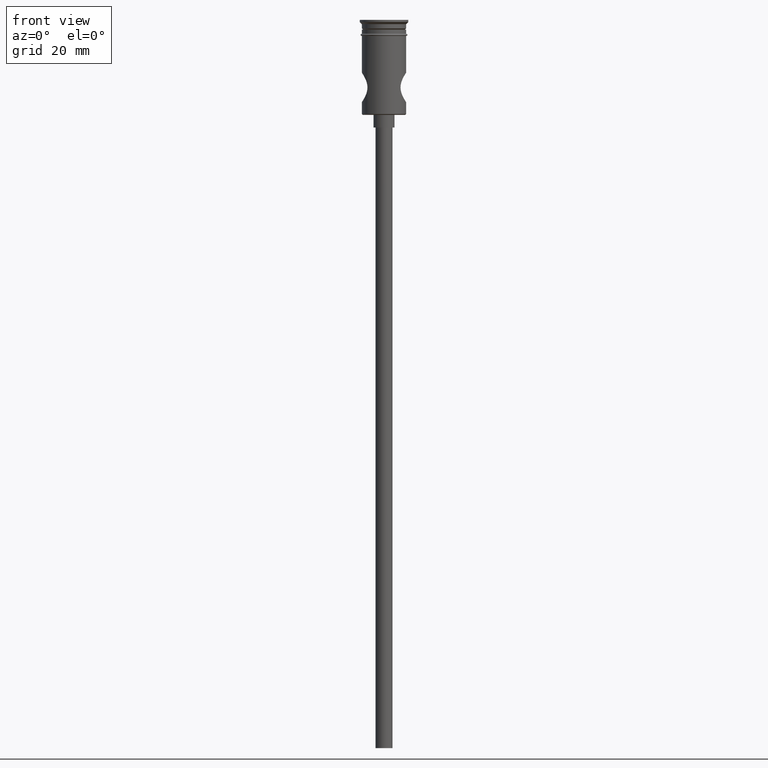
[diagram: clean part render]
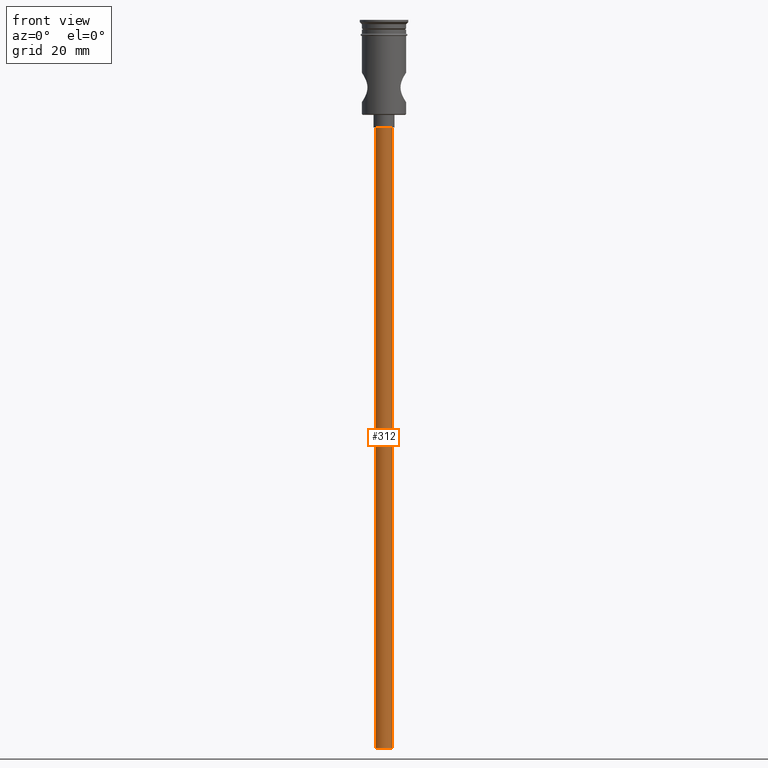
[diagram: same view with one face highlighted and labeled with its STEP entity id]
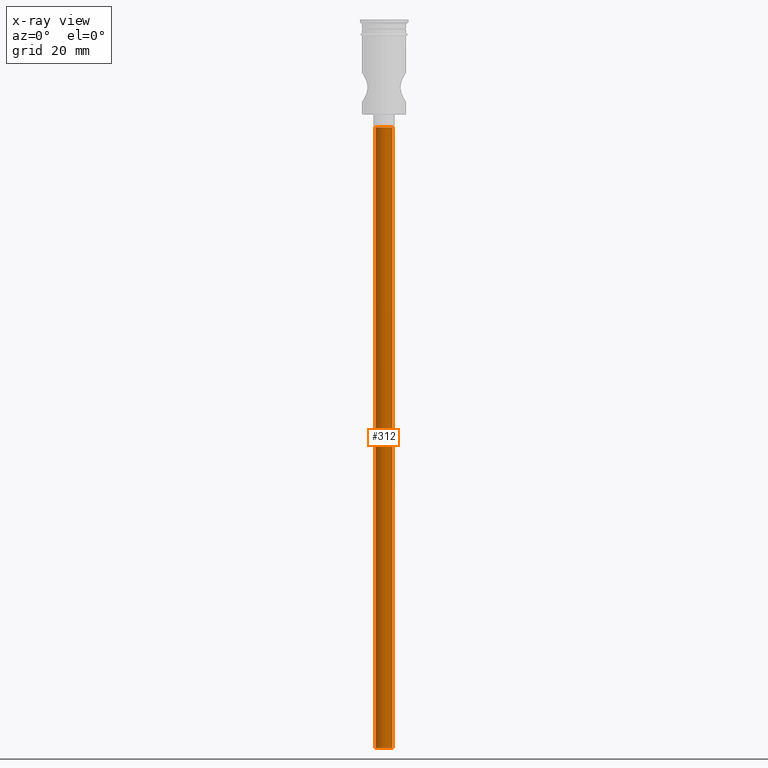
[diagram: x-ray of the same camera — body ghosted, the highlighted face saturated]
A machine part, front view. The second image highlights one B-rep face of the part: STEP entity #312.
The next image is the same camera in x-ray: the body ghosted, the highlighted face saturated — about 0% of this face is hidden behind the body in this view.
In plain terms, the highlighted cylindrical surface (edge-blend (fillet) strip) has radius 2 mm, axis along (-0, -0, 1).
Its self-contained STEP definition (entity closure, byte-faithful):
#17 = LINE ( 'NONE', #804, #856 ) ;
#79 = EDGE_CURVE ( 'NONE', #659, #1107, #17, .T. ) ;
#263 = VERTEX_POINT ( 'NONE', #1181 ) ;
#279 = ORIENTED_EDGE ( 'NONE', *, *, #735, .T. ) ;
#312 = ADVANCED_FACE ( 'NONE', ( #494 ), #1061, .T. ) ;
#336 = ORIENTED_EDGE ( 'NONE', *, *, #79, .T. ) ;
#375 = AXIS2_PLACEMENT_3D ( 'NONE', #1076, #1054, #1396 ) ;
#441 = EDGE_CURVE ( 'NONE', #263, #447, #1191, .T. ) ;
#446 = CARTESIAN_POINT ( 'NONE',  ( 0.000000000000000000, 0.000000000000000000, -172.5000000000000000 ) ) ;
#447 = VERTEX_POINT ( 'NONE', #1439 ) ;
#485 = CARTESIAN_POINT ( 'NONE',  ( 2.000000000000000000, 0.000000000000000000, -172.5000000000000000 ) ) ;
#494 = FACE_OUTER_BOUND ( 'NONE', #1099, .T. ) ;
#500 = DIRECTION ( 'NONE',  ( -1.000000000000000000, 0.000000000000000000, 0.000000000000000000 ) ) ;
#501 = DIRECTION ( 'NONE',  ( -0.000000000000000000, -0.000000000000000000, 1.000000000000000000 ) ) ;
#565 = AXIS2_PLACEMENT_3D ( 'NONE', #1194, #1431, #500 ) ;
#609 = CARTESIAN_POINT ( 'NONE',  ( 2.000000000000000000, 0.000000000000000000, -25.50000000000000000 ) ) ;
#626 = CARTESIAN_POINT ( 'NONE',  ( -2.000000000000000000, 2.449293598294706414E-16, -172.5000000000000000 ) ) ;
#659 = VERTEX_POINT ( 'NONE', #485 ) ;
#665 = DIRECTION ( 'NONE',  ( 0.000000000000000000, 0.000000000000000000, -1.000000000000000000 ) ) ;
#735 = EDGE_CURVE ( 'NONE', #1107, #447, #1329, .T. ) ;
#804 = CARTESIAN_POINT ( 'NONE',  ( 2.000000000000000000, 0.000000000000000000, -172.5000000000000000 ) ) ;
#835 = AXIS2_PLACEMENT_3D ( 'NONE', #446, #665, #1110 ) ;
#856 = VECTOR ( 'NONE', #1252, 1000.000000000000000 ) ;
#858 = VECTOR ( 'NONE', #501, 1000.000000000000000 ) ;
#893 = EDGE_CURVE ( 'NONE', #659, #263, #967, .T. ) ;
#967 = CIRCLE ( 'NONE', #835, 2.000000000000000000 ) ;
#1054 = DIRECTION ( 'NONE',  ( -0.000000000000000000, -0.000000000000000000, 1.000000000000000000 ) ) ;
#1061 = CYLINDRICAL_SURFACE ( 'NONE', #375, 2.000000000000000000 ) ;
#1076 = CARTESIAN_POINT ( 'NONE',  ( 0.000000000000000000, 0.000000000000000000, -172.5000000000000000 ) ) ;
#1099 = EDGE_LOOP ( 'NONE', ( #1397, #1213, #336, #279 ) ) ;
#1107 = VERTEX_POINT ( 'NONE', #609 ) ;
#1110 = DIRECTION ( 'NONE',  ( -1.000000000000000000, 0.000000000000000000, 0.000000000000000000 ) ) ;
#1181 = CARTESIAN_POINT ( 'NONE',  ( -2.000000000000000000, 2.449293598294706414E-16, -172.5000000000000000 ) ) ;
#1191 = LINE ( 'NONE', #626, #858 ) ;
#1194 = CARTESIAN_POINT ( 'NONE',  ( 0.000000000000000000, 0.000000000000000000, -25.50000000000000000 ) ) ;
#1213 = ORIENTED_EDGE ( 'NONE', *, *, #893, .F. ) ;
#1252 = DIRECTION ( 'NONE',  ( -0.000000000000000000, -0.000000000000000000, 1.000000000000000000 ) ) ;
#1329 = CIRCLE ( 'NONE', #565, 2.000000000000000000 ) ;
#1396 = DIRECTION ( 'NONE',  ( 1.000000000000000000, 0.000000000000000000, 0.000000000000000000 ) ) ;
#1397 = ORIENTED_EDGE ( 'NONE', *, *, #441, .F. ) ;
#1431 = DIRECTION ( 'NONE',  ( 0.000000000000000000, 0.000000000000000000, -1.000000000000000000 ) ) ;
#1439 = CARTESIAN_POINT ( 'NONE',  ( -2.000000000000000000, 2.449293598294706414E-16, -25.50000000000000000 ) ) ;